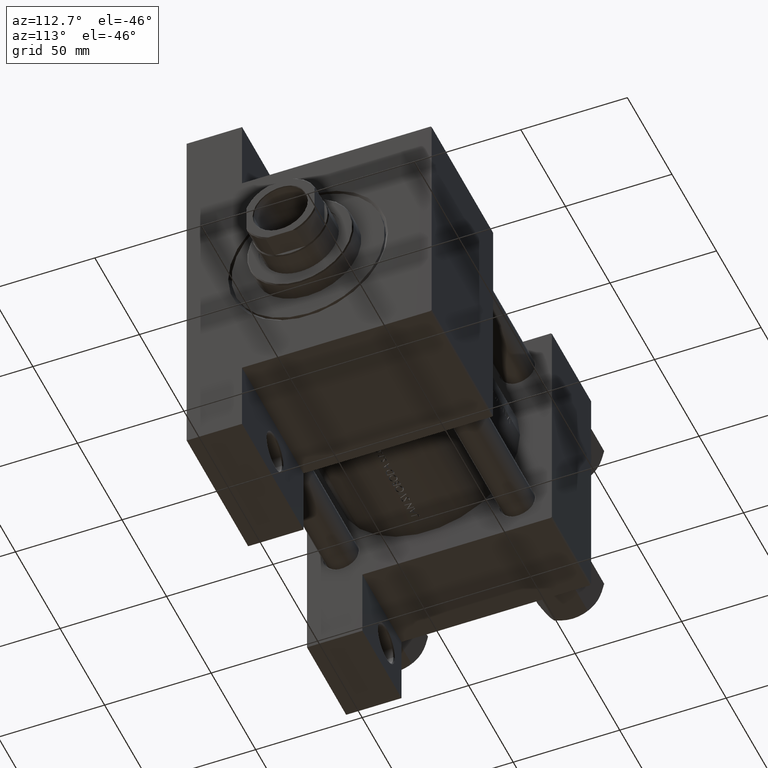
[diagram: clean part render]
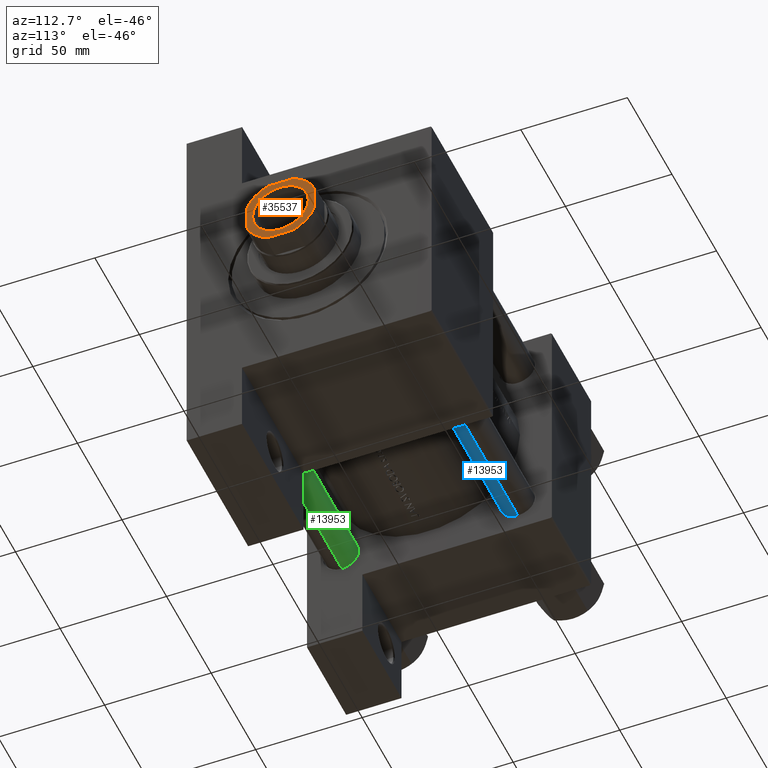
[diagram: same view with three faces highlighted in distinct colors, each labeled with its STEP entity id]
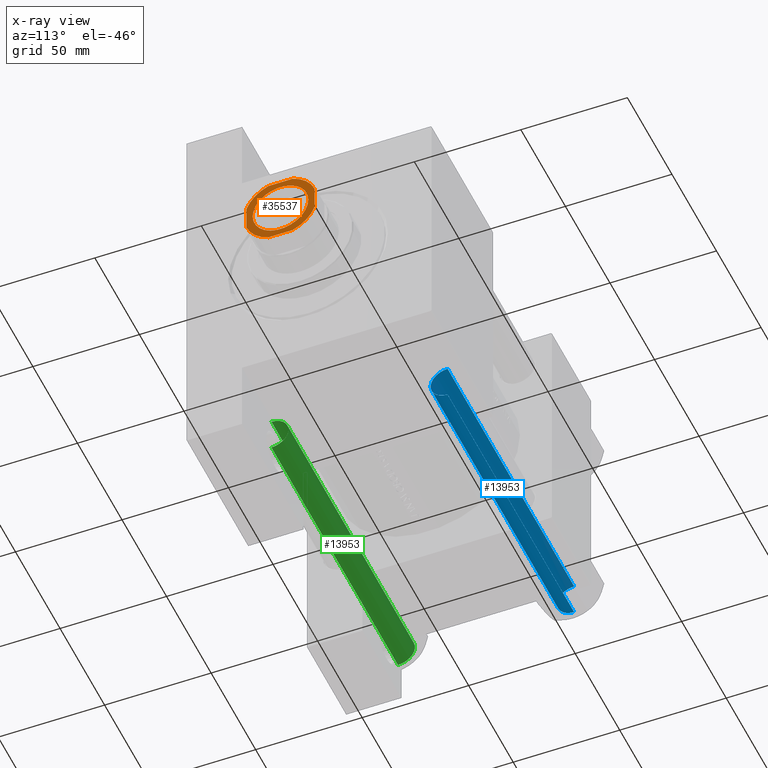
[diagram: x-ray of the same camera — body ghosted, the three highlighted faces saturated]
A machine part, auxiliary view with three faces highlighted in distinct colors.
The next image is the same camera in x-ray (body ghosted, the three faces saturated) — at least one of them is partly hidden behind the body in this view.
Their STEP definitions:

[orange] entity #35537 — the highlighted planar face has unit normal (1, 0, 0).
#1103 = DIRECTION ( 'NONE',  ( 0.000000000000000000, -1.000000000000000000, 0.000000000000000000 ) ) ;
#1182 = VERTEX_POINT ( 'NONE', #47365 ) ;
#1281 = CIRCLE ( 'NONE', #22223, 13.04999999999997762 ) ;
#2016 = CIRCLE ( 'NONE', #33020, 13.04999999999997762 ) ;
#3095 = CARTESIAN_POINT ( 'NONE',  ( 0.000000000000000000, 0.000000000000000000, 166.0000000000000000 ) ) ;
#5443 = VECTOR ( 'NONE', #39464, 1000.000000000000000 ) ;
#5483 = CARTESIAN_POINT ( 'NONE',  ( -16.00000000000000000, 16.00000000000000000, 166.0000000000000000 ) ) ;
#5549 = VERTEX_POINT ( 'NONE', #20730 ) ;
#6813 = CIRCLE ( 'NONE', #25417, 17.00000000000001776 ) ;
#6987 = CARTESIAN_POINT ( 'NONE',  ( -16.00000000000000000, -15.99999999999999645, 166.0000000000000000 ) ) ;
#7718 = VERTEX_POINT ( 'NONE', #43719 ) ;
#8896 = LINE ( 'NONE', #26840, #26384 ) ;
#9229 = ORIENTED_EDGE ( 'NONE', *, *, #22148, .T. ) ;
#9575 = CARTESIAN_POINT ( 'NONE',  ( 0.000000000000000000, 0.000000000000000000, 166.0000000000000000 ) ) ;
#10044 = CARTESIAN_POINT ( 'NONE',  ( -5.744562646537943351, 16.00000000000000000, 166.0000000000000000 ) ) ;
#10057 = CIRCLE ( 'NONE', #27097, 17.00000000000001776 ) ;
#11379 = VERTEX_POINT ( 'NONE', #45557 ) ;
#12779 = VERTEX_POINT ( 'NONE', #46980 ) ;
#13547 = DIRECTION ( 'NONE',  ( 0.000000000000000000, -0.000000000000000000, -1.000000000000000000 ) ) ;
#13676 = ORIENTED_EDGE ( 'NONE', *, *, #43714, .T. ) ;
#14027 = DIRECTION ( 'NONE',  ( 1.000000000000000000, 0.000000000000000000, 0.000000000000000000 ) ) ;
#14400 = DIRECTION ( 'NONE',  ( 1.000000000000000000, 0.000000000000000000, 0.000000000000000000 ) ) ;
#16112 = DIRECTION ( 'NONE',  ( 1.000000000000000000, 0.000000000000000000, 0.000000000000000000 ) ) ;
#17141 = VERTEX_POINT ( 'NONE', #10044 ) ;
#18048 = CARTESIAN_POINT ( 'NONE',  ( 0.000000000000000000, 0.000000000000000000, 166.0000000000000000 ) ) ;
#19174 = VERTEX_POINT ( 'NONE', #45951 ) ;
#20730 = CARTESIAN_POINT ( 'NONE',  ( 16.00000000000000000, -5.744562646538085460, 166.0000000000000000 ) ) ;
#20808 = CARTESIAN_POINT ( 'NONE',  ( 0.000000000000000000, 0.000000000000000000, 166.0000000000000000 ) ) ;
#21062 = DIRECTION ( 'NONE',  ( 1.000000000000000000, 0.000000000000000000, 0.000000000000000000 ) ) ;
#21522 = DIRECTION ( 'NONE',  ( 1.000000000000000000, 0.000000000000000000, 0.000000000000000000 ) ) ;
#22148 = EDGE_CURVE ( 'NONE', #19174, #12779, #2016, .T. ) ;
#22223 = AXIS2_PLACEMENT_3D ( 'NONE', #18048, #36746, #14400 ) ;
#22295 = AXIS2_PLACEMENT_3D ( 'NONE', #37477, #36775, #25840 ) ;
#23122 = CARTESIAN_POINT ( 'NONE',  ( -16.00000000000000000, 5.744562646537943351, 166.0000000000000000 ) ) ;
#23818 = CARTESIAN_POINT ( 'NONE',  ( 0.000000000000000000, 0.000000000000000000, 166.0000000000000000 ) ) ;
#23922 = LINE ( 'NONE', #5483, #5443 ) ;
#24130 = ORIENTED_EDGE ( 'NONE', *, *, #47257, .T. ) ;
#24701 = DIRECTION ( 'NONE',  ( -0.000000000000000000, 0.000000000000000000, 1.000000000000000000 ) ) ;
#25009 = EDGE_CURVE ( 'NONE', #17141, #34114, #43161, .T. ) ;
#25123 = DIRECTION ( 'NONE',  ( 1.000000000000000000, 0.000000000000000000, 0.000000000000000000 ) ) ;
#25417 = AXIS2_PLACEMENT_3D ( 'NONE', #3095, #24701, #21522 ) ;
#25457 = CARTESIAN_POINT ( 'NONE',  ( 5.744562646538085460, 16.00000000000000000, 166.0000000000000000 ) ) ;
#25575 = VERTEX_POINT ( 'NONE', #25457 ) ;
#25840 = DIRECTION ( 'NONE',  ( 1.000000000000000000, 0.000000000000000000, 0.000000000000000000 ) ) ;
#26384 = VECTOR ( 'NONE', #1103, 1000.000000000000000 ) ;
#26840 = CARTESIAN_POINT ( 'NONE',  ( -16.00000000000000000, 16.00000000000000000, 166.0000000000000000 ) ) ;
#26876 = LINE ( 'NONE', #38056, #47759 ) ;
#27097 = AXIS2_PLACEMENT_3D ( 'NONE', #9575, #38451, #16112 ) ;
#27822 = ORIENTED_EDGE ( 'NONE', *, *, #43267, .T. ) ;
#27869 = PLANE ( 'NONE',  #37203 ) ;
#29929 = EDGE_LOOP ( 'NONE', ( #9229, #40388 ) ) ;
#31763 = CARTESIAN_POINT ( 'NONE',  ( 0.000000000000000000, 0.000000000000000000, 166.0000000000000000 ) ) ;
#31822 = EDGE_CURVE ( 'NONE', #7718, #1182, #43164, .T. ) ;
#33020 = AXIS2_PLACEMENT_3D ( 'NONE', #20808, #13547, #14027 ) ;
#34114 = VERTEX_POINT ( 'NONE', #23122 ) ;
#35537 = ADVANCED_FACE ( 'NONE', ( #43818, #36302 ), #27869, .T. ) ;
#36085 = ORIENTED_EDGE ( 'NONE', *, *, #31822, .T. ) ;
#36302 = FACE_OUTER_BOUND ( 'NONE', #37728, .T. ) ;
#36642 = EDGE_CURVE ( 'NONE', #34114, #11379, #8896, .T. ) ;
#36742 = EDGE_CURVE ( 'NONE', #25575, #17141, #23922, .T. ) ;
#36746 = DIRECTION ( 'NONE',  ( 0.000000000000000000, -0.000000000000000000, -1.000000000000000000 ) ) ;
#36775 = DIRECTION ( 'NONE',  ( -0.000000000000000000, 0.000000000000000000, 1.000000000000000000 ) ) ;
#37203 = AXIS2_PLACEMENT_3D ( 'NONE', #31763, #38795, #25123 ) ;
#37477 = CARTESIAN_POINT ( 'NONE',  ( 0.000000000000000000, 0.000000000000000000, 166.0000000000000000 ) ) ;
#37728 = EDGE_LOOP ( 'NONE', ( #43121, #13676, #43483, #41166, #44280, #24130, #36085, #27822 ) ) ;
#38056 = CARTESIAN_POINT ( 'NONE',  ( 15.99999999999999645, 16.00000000000000000, 166.0000000000000000 ) ) ;
#38451 = DIRECTION ( 'NONE',  ( -0.000000000000000000, 0.000000000000000000, 1.000000000000000000 ) ) ;
#38643 = DIRECTION ( 'NONE',  ( -0.000000000000000000, 0.000000000000000000, 1.000000000000000000 ) ) ;
#38781 = DIRECTION ( 'NONE',  ( -1.084202172485504434E-16, 1.000000000000000000, -0.000000000000000000 ) ) ;
#38795 = DIRECTION ( 'NONE',  ( -0.000000000000000000, 0.000000000000000000, 1.000000000000000000 ) ) ;
#39311 = EDGE_CURVE ( 'NONE', #5549, #47777, #26876, .T. ) ;
#39464 = DIRECTION ( 'NONE',  ( -1.000000000000000000, -0.000000000000000000, -0.000000000000000000 ) ) ;
#40388 = ORIENTED_EDGE ( 'NONE', *, *, #40527, .T. ) ;
#40527 = EDGE_CURVE ( 'NONE', #12779, #19174, #1281, .T. ) ;
#41166 = ORIENTED_EDGE ( 'NONE', *, *, #25009, .T. ) ;
#42466 = CIRCLE ( 'NONE', #22295, 17.00000000000001776 ) ;
#43121 = ORIENTED_EDGE ( 'NONE', *, *, #39311, .T. ) ;
#43161 = CIRCLE ( 'NONE', #46259, 16.99999999999997158 ) ;
#43164 = LINE ( 'NONE', #6987, #44952 ) ;
#43267 = EDGE_CURVE ( 'NONE', #1182, #5549, #6813, .T. ) ;
#43483 = ORIENTED_EDGE ( 'NONE', *, *, #36742, .T. ) ;
#43714 = EDGE_CURVE ( 'NONE', #47777, #25575, #42466, .T. ) ;
#43719 = CARTESIAN_POINT ( 'NONE',  ( -5.744562646538093453, -15.99999999999999645, 166.0000000000000000 ) ) ;
#43818 = FACE_BOUND ( 'NONE', #29929, .T. ) ;
#44280 = ORIENTED_EDGE ( 'NONE', *, *, #36642, .T. ) ;
#44952 = VECTOR ( 'NONE', #21062, 1000.000000000000000 ) ;
#45090 = CARTESIAN_POINT ( 'NONE',  ( 16.00000000000000000, 5.744562646538086348, 166.0000000000000000 ) ) ;
#45557 = CARTESIAN_POINT ( 'NONE',  ( -16.00000000000000000, -5.744562646538084572, 166.0000000000000000 ) ) ;
#45680 = DIRECTION ( 'NONE',  ( 1.000000000000000000, 0.000000000000000000, 0.000000000000000000 ) ) ;
#45951 = CARTESIAN_POINT ( 'NONE',  ( 13.04999999999997762, 0.000000000000000000, 166.0000000000000000 ) ) ;
#46259 = AXIS2_PLACEMENT_3D ( 'NONE', #23818, #38643, #45680 ) ;
#46980 = CARTESIAN_POINT ( 'NONE',  ( -13.04999999999997762, 1.598164072887293210E-15, 166.0000000000000000 ) ) ;
#47257 = EDGE_CURVE ( 'NONE', #11379, #7718, #10057, .T. ) ;
#47365 = CARTESIAN_POINT ( 'NONE',  ( 5.744562646538093453, -15.99999999999999645, 166.0000000000000000 ) ) ;
#47759 = VECTOR ( 'NONE', #38781, 1000.000000000000000 ) ;
#47777 = VERTEX_POINT ( 'NONE', #45090 ) ;

[blue] entity #13953 — the highlighted cylindrical surface (edge-blend (fillet) strip) has radius 8 mm, axis along (1, -0, -0).
#1611 = EDGE_LOOP ( 'NONE', ( #17379, #3243, #32459, #6409 ) ) ;
#3243 = ORIENTED_EDGE ( 'NONE', *, *, #20451, .T. ) ;
#4589 = DIRECTION ( 'NONE',  ( 0.000000000000000000, 0.000000000000000000, -1.000000000000000000 ) ) ;
#6409 = ORIENTED_EDGE ( 'NONE', *, *, #9172, .T. ) ;
#8863 = VECTOR ( 'NONE', #36029, 1000.000000000000000 ) ;
#9172 = EDGE_CURVE ( 'NONE', #42111, #32803, #14131, .T. ) ;
#12707 = AXIS2_PLACEMENT_3D ( 'NONE', #40385, #21909, #36741 ) ;
#13953 = ADVANCED_FACE ( 'NONE', ( #34054 ), #25572, .T. ) ;
#14131 = CIRCLE ( 'NONE', #41262, 8.000000000000000000 ) ;
#14470 = CARTESIAN_POINT ( 'NONE',  ( 0.000000000000000000, 0.000000000000000000, 0.4999999999999726885 ) ) ;
#14866 = EDGE_CURVE ( 'NONE', #20604, #32803, #46940, .T. ) ;
#17379 = ORIENTED_EDGE ( 'NONE', *, *, #14866, .F. ) ;
#18996 = CIRCLE ( 'NONE', #22071, 8.000000000000000000 ) ;
#19110 = CARTESIAN_POINT ( 'NONE',  ( 8.000000000000000000, 9.797174393178825657E-16, 0.4999999999999726885 ) ) ;
#19614 = DIRECTION ( 'NONE',  ( 1.000000000000000000, 0.000000000000000000, 0.000000000000000000 ) ) ;
#20451 = EDGE_CURVE ( 'NONE', #20604, #35431, #18996, .T. ) ;
#20604 = VERTEX_POINT ( 'NONE', #40248 ) ;
#21909 = DIRECTION ( 'NONE',  ( -0.000000000000000000, -0.000000000000000000, -1.000000000000000000 ) ) ;
#22071 = AXIS2_PLACEMENT_3D ( 'NONE', #37844, #4589, #19614 ) ;
#25572 = CYLINDRICAL_SURFACE ( 'NONE', #12707, 8.000000000000000000 ) ;
#29533 = DIRECTION ( 'NONE',  ( -0.000000000000000000, -0.000000000000000000, 1.000000000000000000 ) ) ;
#32459 = ORIENTED_EDGE ( 'NONE', *, *, #45824, .T. ) ;
#32803 = VERTEX_POINT ( 'NONE', #19110 ) ;
#34054 = FACE_OUTER_BOUND ( 'NONE', #1611, .T. ) ;
#35431 = VERTEX_POINT ( 'NONE', #38070 ) ;
#35951 = DIRECTION ( 'NONE',  ( -0.000000000000000000, -0.000000000000000000, -1.000000000000000000 ) ) ;
#36029 = DIRECTION ( 'NONE',  ( -0.000000000000000000, -0.000000000000000000, -1.000000000000000000 ) ) ;
#36188 = LINE ( 'NONE', #47101, #41780 ) ;
#36275 = CARTESIAN_POINT ( 'NONE',  ( 8.000000000000000000, 9.797174393178825657E-16, 143.0000000000000000 ) ) ;
#36343 = DIRECTION ( 'NONE',  ( 1.000000000000000000, 0.000000000000000000, 0.000000000000000000 ) ) ;
#36741 = DIRECTION ( 'NONE',  ( -1.000000000000000000, 0.000000000000000000, 0.000000000000000000 ) ) ;
#37844 = CARTESIAN_POINT ( 'NONE',  ( 0.000000000000000000, 0.000000000000000000, 142.4999999999999716 ) ) ;
#38070 = CARTESIAN_POINT ( 'NONE',  ( -8.000000000000000000, 0.000000000000000000, 142.4999999999999716 ) ) ;
#40248 = CARTESIAN_POINT ( 'NONE',  ( 8.000000000000000000, 9.797174393178825657E-16, 142.4999999999999716 ) ) ;
#40385 = CARTESIAN_POINT ( 'NONE',  ( 0.000000000000000000, 0.000000000000000000, 143.0000000000000000 ) ) ;
#41262 = AXIS2_PLACEMENT_3D ( 'NONE', #14470, #29533, #36343 ) ;
#41780 = VECTOR ( 'NONE', #35951, 1000.000000000000000 ) ;
#42111 = VERTEX_POINT ( 'NONE', #46646 ) ;
#45824 = EDGE_CURVE ( 'NONE', #35431, #42111, #36188, .T. ) ;
#46646 = CARTESIAN_POINT ( 'NONE',  ( -8.000000000000000000, 0.000000000000000000, 0.4999999999999726885 ) ) ;
#46940 = LINE ( 'NONE', #36275, #8863 ) ;
#47101 = CARTESIAN_POINT ( 'NONE',  ( -8.000000000000000000, 0.000000000000000000, 143.0000000000000000 ) ) ;

[green] entity #13953 — the highlighted cylindrical surface (edge-blend (fillet) strip) has radius 8 mm, axis along (-1, 0, 0).
#1611 = EDGE_LOOP ( 'NONE', ( #17379, #3243, #32459, #6409 ) ) ;
#3243 = ORIENTED_EDGE ( 'NONE', *, *, #20451, .T. ) ;
#4589 = DIRECTION ( 'NONE',  ( 0.000000000000000000, 0.000000000000000000, -1.000000000000000000 ) ) ;
#6409 = ORIENTED_EDGE ( 'NONE', *, *, #9172, .T. ) ;
#8863 = VECTOR ( 'NONE', #36029, 1000.000000000000000 ) ;
#9172 = EDGE_CURVE ( 'NONE', #42111, #32803, #14131, .T. ) ;
#12707 = AXIS2_PLACEMENT_3D ( 'NONE', #40385, #21909, #36741 ) ;
#13953 = ADVANCED_FACE ( 'NONE', ( #34054 ), #25572, .T. ) ;
#14131 = CIRCLE ( 'NONE', #41262, 8.000000000000000000 ) ;
#14470 = CARTESIAN_POINT ( 'NONE',  ( 0.000000000000000000, 0.000000000000000000, 0.4999999999999726885 ) ) ;
#14866 = EDGE_CURVE ( 'NONE', #20604, #32803, #46940, .T. ) ;
#17379 = ORIENTED_EDGE ( 'NONE', *, *, #14866, .F. ) ;
#18996 = CIRCLE ( 'NONE', #22071, 8.000000000000000000 ) ;
#19110 = CARTESIAN_POINT ( 'NONE',  ( 8.000000000000000000, 9.797174393178825657E-16, 0.4999999999999726885 ) ) ;
#19614 = DIRECTION ( 'NONE',  ( 1.000000000000000000, 0.000000000000000000, 0.000000000000000000 ) ) ;
#20451 = EDGE_CURVE ( 'NONE', #20604, #35431, #18996, .T. ) ;
#20604 = VERTEX_POINT ( 'NONE', #40248 ) ;
#21909 = DIRECTION ( 'NONE',  ( -0.000000000000000000, -0.000000000000000000, -1.000000000000000000 ) ) ;
#22071 = AXIS2_PLACEMENT_3D ( 'NONE', #37844, #4589, #19614 ) ;
#25572 = CYLINDRICAL_SURFACE ( 'NONE', #12707, 8.000000000000000000 ) ;
#29533 = DIRECTION ( 'NONE',  ( -0.000000000000000000, -0.000000000000000000, 1.000000000000000000 ) ) ;
#32459 = ORIENTED_EDGE ( 'NONE', *, *, #45824, .T. ) ;
#32803 = VERTEX_POINT ( 'NONE', #19110 ) ;
#34054 = FACE_OUTER_BOUND ( 'NONE', #1611, .T. ) ;
#35431 = VERTEX_POINT ( 'NONE', #38070 ) ;
#35951 = DIRECTION ( 'NONE',  ( -0.000000000000000000, -0.000000000000000000, -1.000000000000000000 ) ) ;
#36029 = DIRECTION ( 'NONE',  ( -0.000000000000000000, -0.000000000000000000, -1.000000000000000000 ) ) ;
#36188 = LINE ( 'NONE', #47101, #41780 ) ;
#36275 = CARTESIAN_POINT ( 'NONE',  ( 8.000000000000000000, 9.797174393178825657E-16, 143.0000000000000000 ) ) ;
#36343 = DIRECTION ( 'NONE',  ( 1.000000000000000000, 0.000000000000000000, 0.000000000000000000 ) ) ;
#36741 = DIRECTION ( 'NONE',  ( -1.000000000000000000, 0.000000000000000000, 0.000000000000000000 ) ) ;
#37844 = CARTESIAN_POINT ( 'NONE',  ( 0.000000000000000000, 0.000000000000000000, 142.4999999999999716 ) ) ;
#38070 = CARTESIAN_POINT ( 'NONE',  ( -8.000000000000000000, 0.000000000000000000, 142.4999999999999716 ) ) ;
#40248 = CARTESIAN_POINT ( 'NONE',  ( 8.000000000000000000, 9.797174393178825657E-16, 142.4999999999999716 ) ) ;
#40385 = CARTESIAN_POINT ( 'NONE',  ( 0.000000000000000000, 0.000000000000000000, 143.0000000000000000 ) ) ;
#41262 = AXIS2_PLACEMENT_3D ( 'NONE', #14470, #29533, #36343 ) ;
#41780 = VECTOR ( 'NONE', #35951, 1000.000000000000000 ) ;
#42111 = VERTEX_POINT ( 'NONE', #46646 ) ;
#45824 = EDGE_CURVE ( 'NONE', #35431, #42111, #36188, .T. ) ;
#46646 = CARTESIAN_POINT ( 'NONE',  ( -8.000000000000000000, 0.000000000000000000, 0.4999999999999726885 ) ) ;
#46940 = LINE ( 'NONE', #36275, #8863 ) ;
#47101 = CARTESIAN_POINT ( 'NONE',  ( -8.000000000000000000, 0.000000000000000000, 143.0000000000000000 ) ) ;